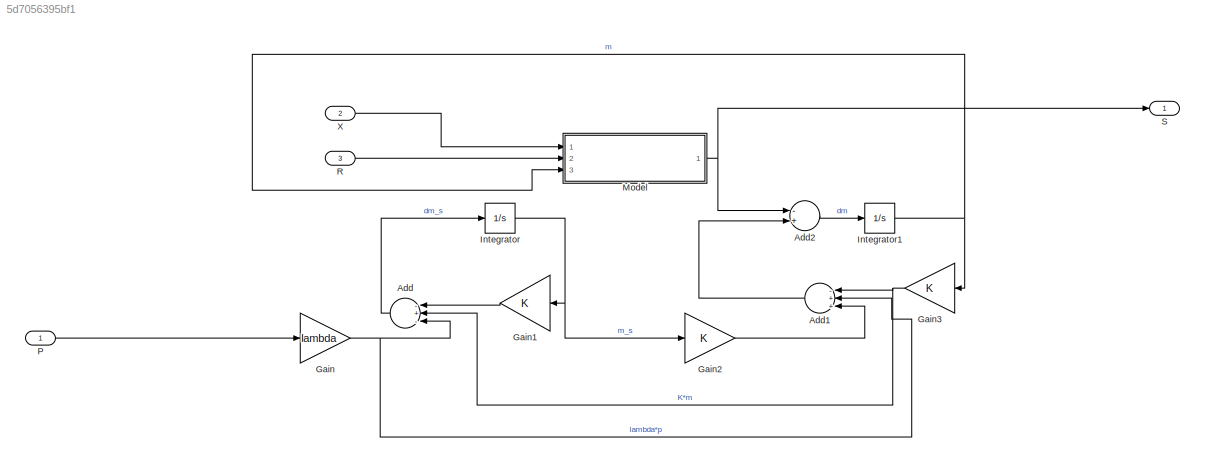
MODEL slx_5d7056395bf1
KIND model
CONFIG AbsTol = auto
CONFIG EnableMultiTasking = off
CONFIG FixedStep = auto
CONFIG MaxStep = auto
CONFIG MinStep = auto
CONFIG RelTol = 1e-3
CONFIG SampleTimeConstraint = Unconstrained
CONFIG Solver = VariableStepAuto
CONFIG SolverName = VariableStepAuto
CONFIG StartTime = 0.0
CONFIG StopTime = 10.0
WORKSPACE source: MAT-file member
WORKSPACE K = 0.00794
BLOCK [Sum] Add
  InputSameDT = off
  Inputs = -+-
  OutDataTypeStr = Inherit: Inherit via internal rule
  Ports = [3, 1]
  SaturateOnIntegerOverflow = off
BLOCK [Sum] Add1
  InputSameDT = off
  Inputs = -++
  OutDataTypeStr = Inherit: Inherit via internal rule
  Ports = [3, 1]
  SaturateOnIntegerOverflow = off
BLOCK [Sum] Add2
  InputSameDT = off
  Inputs = -+
  OutDataTypeStr = Inherit: Inherit via internal rule
  Ports = [2, 1]
  SaturateOnIntegerOverflow = off
BLOCK [Gain] Gain
  Gain = lambda
  OutDataTypeStr = Inherit: Inherit via internal rule
  ParamDataTypeStr = Inherit: Inherit via internal rule
  SaturateOnIntegerOverflow = off
BLOCK [Gain] Gain1
  Gain = K
  OutDataTypeStr = Inherit: Inherit via internal rule
  ParamDataTypeStr = Inherit: Inherit via internal rule
  SaturateOnIntegerOverflow = off
BLOCK [Gain] Gain2
  Gain = K
  OutDataTypeStr = Inherit: Inherit via internal rule
  ParamDataTypeStr = Inherit: Inherit via internal rule
  SaturateOnIntegerOverflow = off
BLOCK [Gain] Gain3
  Gain = K
  OutDataTypeStr = Inherit: Inherit via internal rule
  ParamDataTypeStr = Inherit: Inherit via internal rule
  SaturateOnIntegerOverflow = off
BLOCK [Integrator] Integrator
  LimitOutput = on
  LowerSaturationLimit = 0
  Ports = [1, 1]
BLOCK [Integrator] Integrator1
  LimitOutput = on
  LowerSaturationLimit = 0
  Ports = [1, 1]
BLOCK [ModelReference] Model
  ModelNameDialog = S_new
  ModelReferenceVersion = 1.1
  Ports = [3, 1]
BLOCK [Inport] P
  IconDisplay = Port number
BLOCK [Inport] R
  IconDisplay = Port number
  Port = 3
BLOCK [Outport] S
  IconDisplay = Port number
BLOCK [Inport] X
  IconDisplay = Port number
  Port = 2
LINE Add1:1 -> Add2:2
LINE Add2:1 -> Integrator1:1
LINE Add:1 -> Integrator:1
LINE Gain1:1 -> Add:1
LINE Gain2:1 -> Add1:3
NET Gain3:1 -> Add1:1, Add:2
NET Gain:1 -> Add1:2, Add:3
NET Integrator1:1 -> Gain3:1, Model:3
NET Integrator:1 -> Gain1:1, Gain2:1
NET Model:1 -> Add2:1, S:1
LINE P:1 -> Gain:1
LINE R:1 -> Model:2
LINE X:1 -> Model:1
note: NET lines group one-source signal fan-out (src -> all destinations, sorted); 1:1 wires keep LINE
